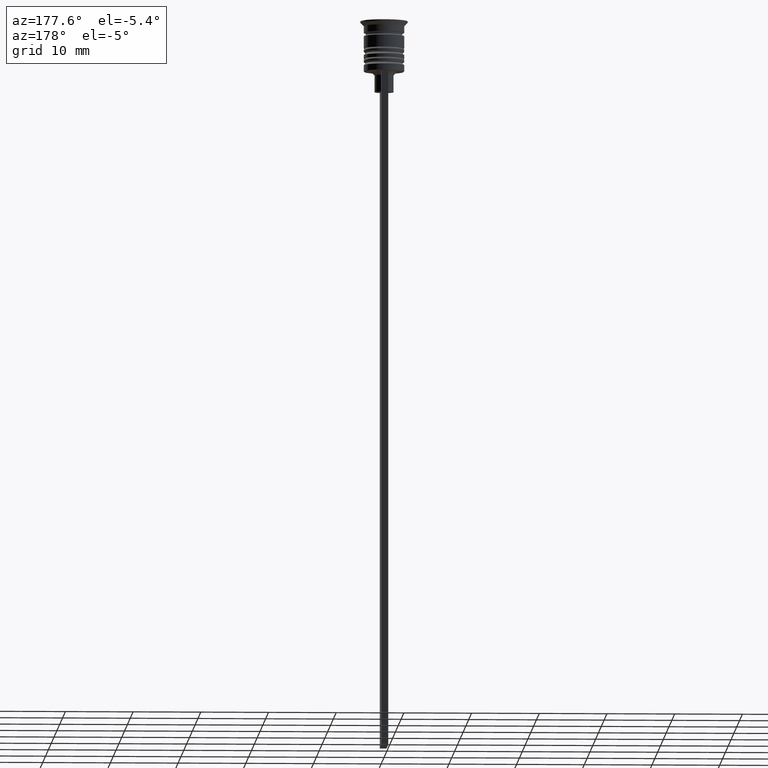
[diagram: clean part render]
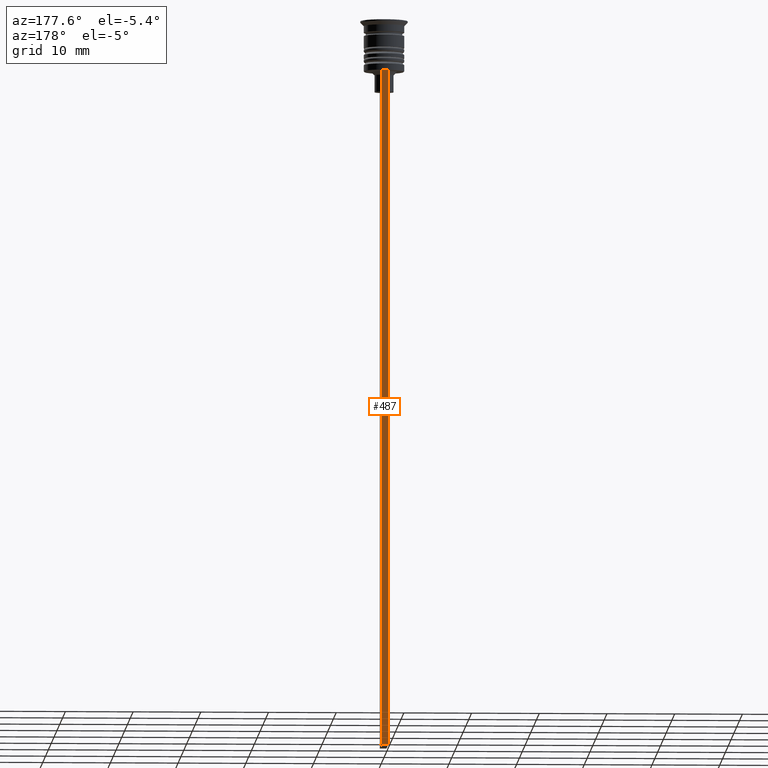
[diagram: same view with one face highlighted and labeled with its STEP entity id]
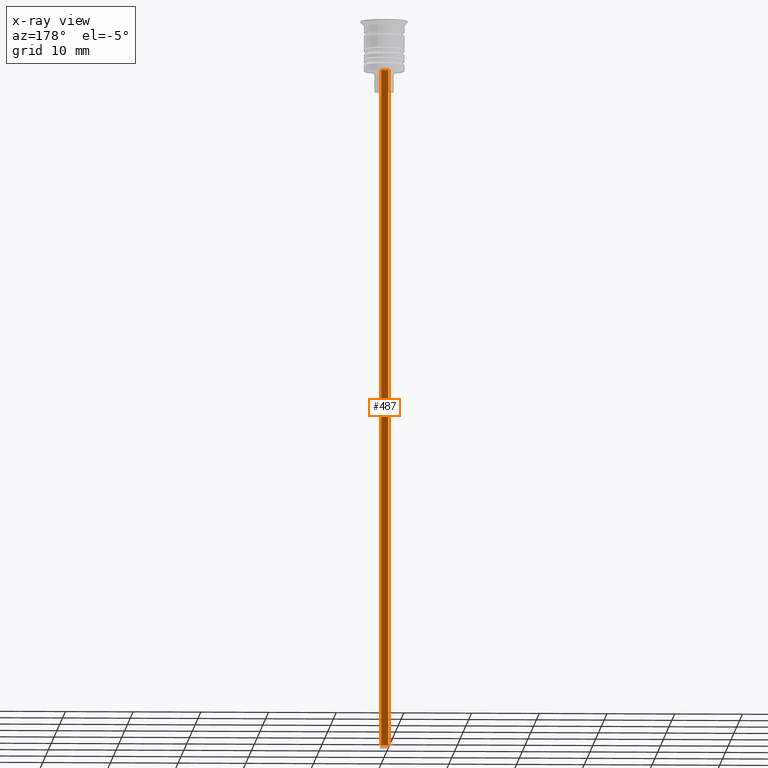
[diagram: x-ray of the same camera — body ghosted, the highlighted face saturated]
A machine part, auxiliary view. The second image highlights one B-rep face of the part: STEP entity #487.
The next image is the same camera in x-ray: the body ghosted, the highlighted face saturated — about 0% of this face is hidden behind the body in this view.
In plain terms, the highlighted planar face has unit normal (0, -1, -0).
Its self-contained STEP definition (entity closure, byte-faithful):
#52 = DIRECTION ( 'NONE',  ( 0.000000000000000000, 0.000000000000000000, -1.000000000000000000 ) ) ;
#229 = EDGE_CURVE ( 'NONE', #1021, #1926, #246, .T. ) ;
#246 = LINE ( 'NONE', #1319, #437 ) ;
#347 = ORIENTED_EDGE ( 'NONE', *, *, #229, .F. ) ;
#372 = PLANE ( 'NONE',  #1450 ) ;
#437 = VECTOR ( 'NONE', #52, 1000.000000000000000 ) ;
#451 = ORIENTED_EDGE ( 'NONE', *, *, #2296, .T. ) ;
#456 = EDGE_CURVE ( 'NONE', #554, #1926, #1547, .T. ) ;
#487 = ADVANCED_FACE ( 'NONE', ( #1440 ), #372, .F. ) ;
#554 = VERTEX_POINT ( 'NONE', #1212 ) ;
#586 = VECTOR ( 'NONE', #1429, 1000.000000000000000 ) ;
#591 = CARTESIAN_POINT ( 'NONE',  ( 0.4999999999999998890, 3.000000000000000000, -7.500000000000000000 ) ) ;
#632 = EDGE_CURVE ( 'NONE', #1102, #554, #1499, .T. ) ;
#895 = ORIENTED_EDGE ( 'NONE', *, *, #632, .T. ) ;
#898 = DIRECTION ( 'NONE',  ( 0.000000000000000000, -1.000000000000000000, -0.000000000000000000 ) ) ;
#932 = DIRECTION ( 'NONE',  ( 1.000000000000000000, 0.000000000000000000, 0.000000000000000000 ) ) ;
#946 = CARTESIAN_POINT ( 'NONE',  ( -0.5000000000000001110, 3.000000000000000000, -107.5000000000000000 ) ) ;
#978 = CARTESIAN_POINT ( 'NONE',  ( 0.4999999999999998890, 3.000000000000000000, -7.500000000000000000 ) ) ;
#999 = VECTOR ( 'NONE', #1121, 1000.000000000000000 ) ;
#1021 = VERTEX_POINT ( 'NONE', #2242 ) ;
#1102 = VERTEX_POINT ( 'NONE', #978 ) ;
#1103 = LINE ( 'NONE', #591, #2023 ) ;
#1121 = DIRECTION ( 'NONE',  ( 0.000000000000000000, 0.000000000000000000, -1.000000000000000000 ) ) ;
#1212 = CARTESIAN_POINT ( 'NONE',  ( 0.4999999999999998890, 3.000000000000000000, -107.5000000000000000 ) ) ;
#1319 = CARTESIAN_POINT ( 'NONE',  ( -0.5000000000000001110, 3.000000000000000000, -1.417237469701779329 ) ) ;
#1366 = CARTESIAN_POINT ( 'NONE',  ( 0.4999999999999998890, 3.000000000000000000, -107.5000000000000000 ) ) ;
#1407 = DIRECTION ( 'NONE',  ( 0.000000000000000000, 0.000000000000000000, -1.000000000000000000 ) ) ;
#1429 = DIRECTION ( 'NONE',  ( -1.000000000000000000, 0.000000000000000000, 0.000000000000000000 ) ) ;
#1440 = FACE_OUTER_BOUND ( 'NONE', #1809, .T. ) ;
#1450 = AXIS2_PLACEMENT_3D ( 'NONE', #1612, #898, #1407 ) ;
#1458 = ORIENTED_EDGE ( 'NONE', *, *, #456, .T. ) ;
#1499 = LINE ( 'NONE', #2210, #999 ) ;
#1547 = LINE ( 'NONE', #1366, #586 ) ;
#1612 = CARTESIAN_POINT ( 'NONE',  ( 0.4999999999999998890, 3.000000000000000000, -1.417237469701779329 ) ) ;
#1809 = EDGE_LOOP ( 'NONE', ( #347, #451, #895, #1458 ) ) ;
#1926 = VERTEX_POINT ( 'NONE', #946 ) ;
#2023 = VECTOR ( 'NONE', #932, 1000.000000000000000 ) ;
#2210 = CARTESIAN_POINT ( 'NONE',  ( 0.4999999999999998890, 3.000000000000000000, -1.417237469701779329 ) ) ;
#2242 = CARTESIAN_POINT ( 'NONE',  ( -0.5000000000000001110, 3.000000000000000000, -7.500000000000000000 ) ) ;
#2296 = EDGE_CURVE ( 'NONE', #1021, #1102, #1103, .T. ) ;